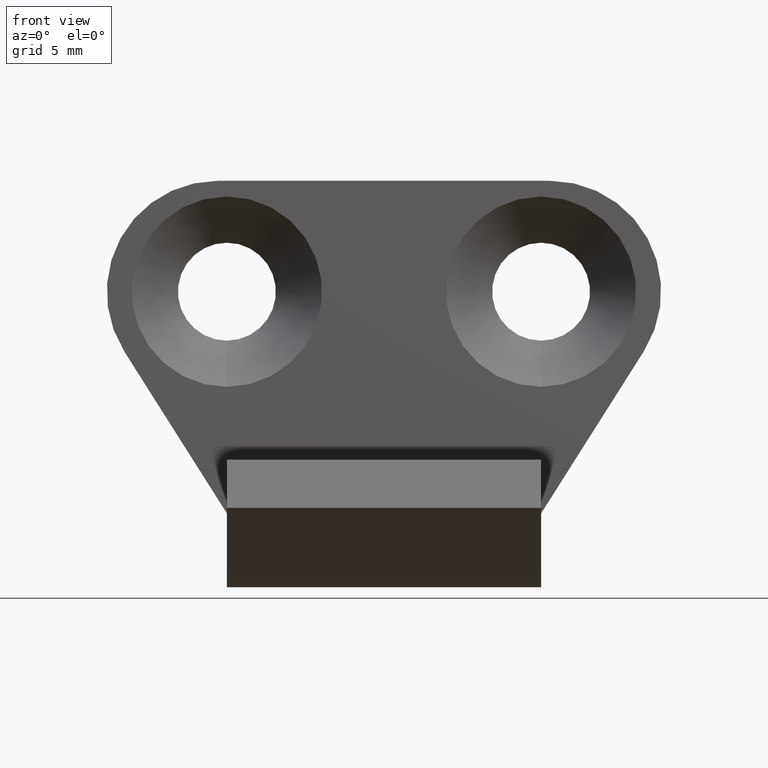
[diagram: clean part render]
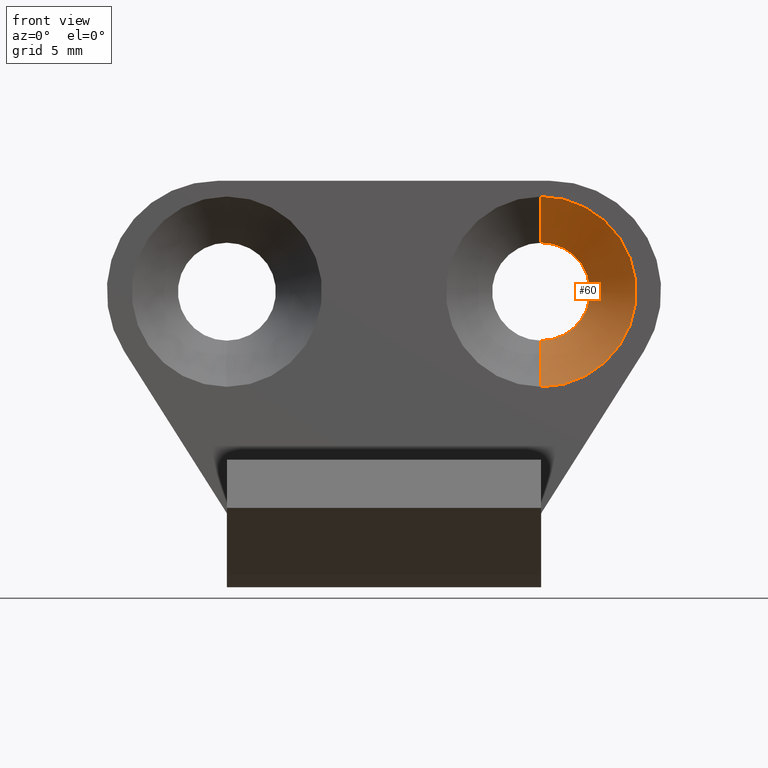
[diagram: same view with one face highlighted and labeled with its STEP entity id]
A machine part, front view. The second image highlights one B-rep face of the part: STEP entity #60.
In plain terms, the highlighted face is a freeform B-spline surface patch.
Its self-contained STEP definition (entity closure, byte-faithful):
#60=ADVANCED_FACE('',(#269),#268,.F.);
#268=( BOUNDED_SURFACE() B_SPLINE_SURFACE( 2,1,((#424,#425),(#426,#427),(#428,#429),(#430,#431),(#432,#433)), .UNSPECIFIED.,.F.,.F.,.F.) B_SPLINE_SURFACE_WITH_KNOTS((3,2,3),(2,2),(0.00000000000E+00,5.00000000000E-01,1.00000000000E+00),(0.00000000000E+00,1.00000000000E+00), .UNSPECIFIED. ) GEOMETRIC_REPRESENTATION_ITEM() RATIONAL_B_SPLINE_SURFACE(((1.00000000000E+00,1.00000000000E+00),(7.07106781187E-01,7.07106781187E-01),(1.00000000000E+00,1.00000000000E+00),(7.07106781187E-01,7.07106781187E-01),(1.00000000000E+00,1.00000000000E+00))) REPRESENTATION_ITEM('') SURFACE() );
#269=FACE_OUTER_BOUND('',#434,.T.);
#424=CARTESIAN_POINT('',(8.50000000000E+00,2.49999999995E+00,-2.65000000006E+00));
#425=CARTESIAN_POINT('',(8.50000000000E+00,0.00000000000E+00,-5.15000000000E+00));
#426=CARTESIAN_POINT('',(1.11500000001E+01,2.49999999995E+00,-2.65000000006E+00));
#427=CARTESIAN_POINT('',(1.36500000000E+01,0.00000000000E+00,-5.15000000000E+00));
#428=CARTESIAN_POINT('',(1.11500000001E+01,2.49999999995E+00,1.61409113851E-15));
#429=CARTESIAN_POINT('',(1.36500000000E+01,0.00000000000E+00,1.46101028862E-15));
#430=CARTESIAN_POINT('',(1.11500000001E+01,2.49999999995E+00,2.65000000006E+00));
#431=CARTESIAN_POINT('',(1.36500000000E+01,0.00000000000E+00,5.15000000000E+00));
#432=CARTESIAN_POINT('',(8.50000000000E+00,2.49999999995E+00,2.65000000006E+00));
#433=CARTESIAN_POINT('',(8.50000000000E+00,0.00000000000E+00,5.15000000000E+00));
#434=EDGE_LOOP('',(#560,#561,#562,#563));
#560=ORIENTED_EDGE('',*,*,#630,.T.);
#561=ORIENTED_EDGE('',*,*,#631,.T.);
#562=ORIENTED_EDGE('',*,*,#592,.F.);
#563=ORIENTED_EDGE('',*,*,#632,.F.);
#592=EDGE_CURVE('',#746,#747,#748,.T.);
#630=EDGE_CURVE('',#996,#997,#998,.T.);
#631=EDGE_CURVE('',#997,#747,#1004,.T.);
#632=EDGE_CURVE('',#996,#746,#1010,.T.);
#746=VERTEX_POINT('',#1102);
#747=VERTEX_POINT('',#1103);
#748=CIRCLE('',#1107,5.15000000000E+00);
#996=VERTEX_POINT('',#1248);
#997=VERTEX_POINT('',#1249);
#998=CIRCLE('',#1253,2.65000000006E+00);
#1004=(BOUNDED_CURVE() B_SPLINE_CURVE(1,(#1254,#1255),.UNSPECIFIED.,.F.,.F.) B_SPLINE_CURVE_WITH_KNOTS((2,2),(0.00000000000E+00,1.00000000000E+00),.UNSPECIFIED.) CURVE() GEOMETRIC_REPRESENTATION_ITEM() RATIONAL_B_SPLINE_CURVE((1.00000000000E+00,1.00000000000E+00)) REPRESENTATION_ITEM('') );
#1010=(BOUNDED_CURVE() B_SPLINE_CURVE(1,(#1256,#1257),.UNSPECIFIED.,.F.,.F.) B_SPLINE_CURVE_WITH_KNOTS((2,2),(0.00000000000E+00,1.00000000000E+00),.UNSPECIFIED.) CURVE() GEOMETRIC_REPRESENTATION_ITEM() RATIONAL_B_SPLINE_CURVE((7.50000000000E-01,7.50000000000E-01)) REPRESENTATION_ITEM('') );
#1102=CARTESIAN_POINT('',(8.50000000000E+00,0.00000000000E+00,5.15000000000E+00));
#1103=CARTESIAN_POINT('',(8.50000000000E+00,0.00000000000E+00,-5.15000000000E+00));
#1104=CARTESIAN_POINT('',(8.50000000000E+00,0.00000000000E+00,0.00000000000E+00));
#1105=DIRECTION('',(0.00000000000E+00,1.00000000000E+00,-0.00000000000E+00));
#1106=DIRECTION('',(-1.22460635382E-16,0.00000000000E+00,1.00000000000E+00));
#1107=AXIS2_PLACEMENT_3D('',#1104,#1105,#1106);
#1248=CARTESIAN_POINT('',(8.50000000000E+00,2.49999999995E+00,2.65000000006E+00));
#1249=CARTESIAN_POINT('',(8.50000000000E+00,2.49999999995E+00,-2.65000000006E+00));
#1250=CARTESIAN_POINT('',(8.50000000000E+00,2.49999999995E+00,0.00000000000E+00));
#1251=DIRECTION('',(0.00000000000E+00,1.00000000000E+00,-0.00000000000E+00));
#1252=DIRECTION('',(-1.22460635382E-16,0.00000000000E+00,1.00000000000E+00));
#1253=AXIS2_PLACEMENT_3D('',#1250,#1251,#1252);
#1254=CARTESIAN_POINT('',(8.50000000000E+00,2.49999999995E+00,-2.65000000006E+00));
#1255=CARTESIAN_POINT('',(8.50000000000E+00,0.00000000000E+00,-5.15000000000E+00));
#1256=CARTESIAN_POINT('',(8.50000000000E+00,2.49999999995E+00,2.65000000006E+00));
#1257=CARTESIAN_POINT('',(8.50000000000E+00,0.00000000000E+00,5.15000000000E+00));